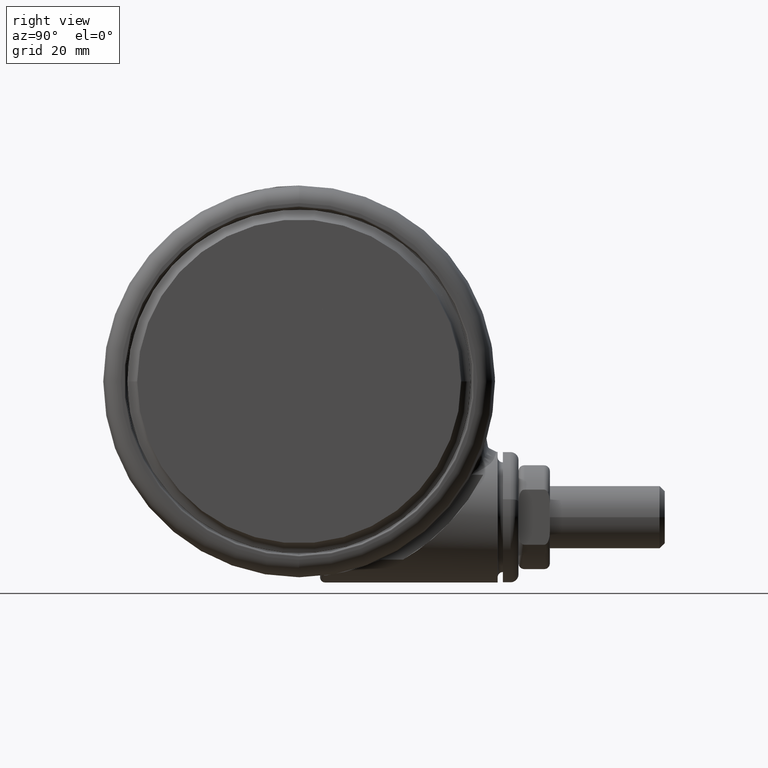
[diagram: clean part render]
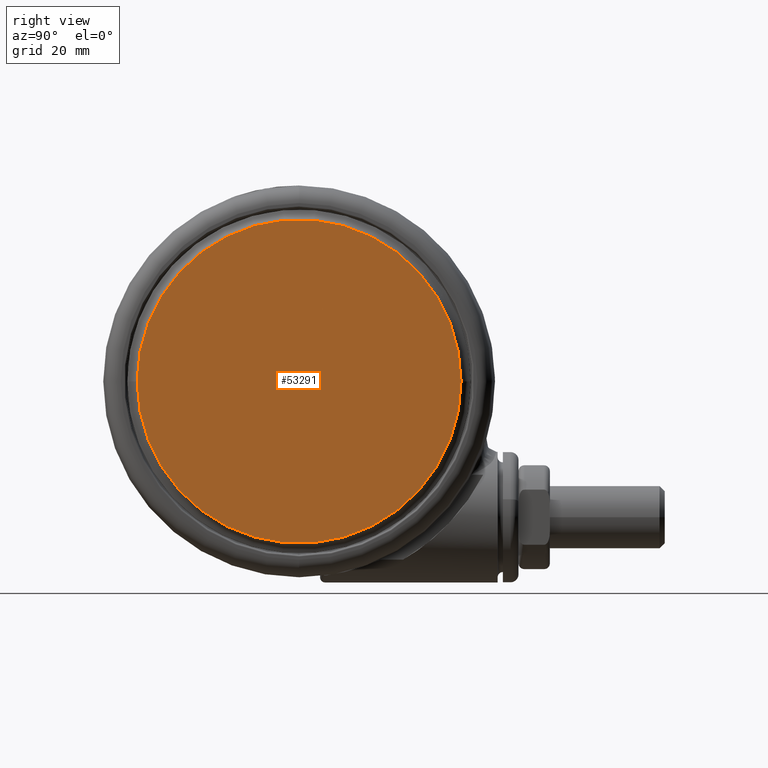
[diagram: same view with one face highlighted and labeled with its STEP entity id]
A machine part, right view. The second image highlights one B-rep face of the part: STEP entity #53291.
In plain terms, the highlighted planar face has unit normal (-1, -0, 0).
Its self-contained STEP definition (entity closure, byte-faithful):
#543 = DIRECTION ( 'NONE',  ( 0.0000000000000000000, 0.0000000000000000000, -1.000000000000000000 ) ) ;
#3463 = VERTEX_POINT ( 'NONE', #4412 ) ;
#4412 = CARTESIAN_POINT ( 'NONE',  ( 31.00000000000000000, 0.0000000000000000000, -1.301042606982605300E-015 ) ) ;
#10642 = AXIS2_PLACEMENT_3D ( 'NONE', #43622, #16733, #48098 ) ;
#11080 = DIRECTION ( 'NONE',  ( 0.0000000000000000000, 0.0000000000000000000, 1.000000000000000000 ) ) ;
#16176 = CARTESIAN_POINT ( 'NONE',  ( -31.00000000000000000, 3.907598370292685700E-015, -1.301042606982605300E-015 ) ) ;
#16733 = DIRECTION ( 'NONE',  ( 0.0000000000000000000, 0.0000000000000000000, 1.000000000000000000 ) ) ;
#21045 = EDGE_CURVE ( 'NONE', #39732, #3463, #50110, .T. ) ;
#29133 = ORIENTED_EDGE ( 'NONE', *, *, #21045, .T. ) ;
#31828 = DIRECTION ( 'NONE',  ( -1.000000000000000000, 0.0000000000000000000, 0.0000000000000000000 ) ) ;
#37906 = CARTESIAN_POINT ( 'NONE',  ( 0.0000000000000000000, 0.0000000000000000000, -1.301042606982605300E-015 ) ) ;
#37930 = ORIENTED_EDGE ( 'NONE', *, *, #45911, .T. ) ;
#39342 = AXIS2_PLACEMENT_3D ( 'NONE', #49711, #543, #31828 ) ;
#39732 = VERTEX_POINT ( 'NONE', #16176 ) ;
#40325 = CIRCLE ( 'NONE', #58111, 31.00000000000000000 ) ;
#42450 = DIRECTION ( 'NONE',  ( 1.000000000000000000, 0.0000000000000000000, 0.0000000000000000000 ) ) ;
#43622 = CARTESIAN_POINT ( 'NONE',  ( 0.0000000000000000000, 0.0000000000000000000, -1.301042606982605300E-015 ) ) ;
#45911 = EDGE_CURVE ( 'NONE', #3463, #39732, #40325, .T. ) ;
#48098 = DIRECTION ( 'NONE',  ( 1.000000000000000000, 0.0000000000000000000, 0.0000000000000000000 ) ) ;
#49711 = CARTESIAN_POINT ( 'NONE',  ( 0.0000000000000000000, 31.00000000000000000, -1.301042606982605300E-015 ) ) ;
#50110 = CIRCLE ( 'NONE', #10642, 31.00000000000000000 ) ;
#50832 = FACE_OUTER_BOUND ( 'NONE', #55708, .T. ) ;
#53291 = ADVANCED_FACE ( 'NONE', ( #50832 ), #54207, .F. ) ;
#54207 = PLANE ( 'NONE',  #39342 ) ;
#55708 = EDGE_LOOP ( 'NONE', ( #37930, #29133 ) ) ;
#58111 = AXIS2_PLACEMENT_3D ( 'NONE', #37906, #11080, #42450 ) ;